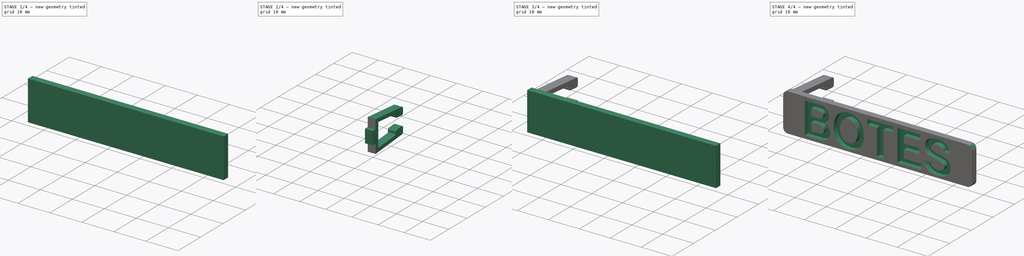
[diagram: build sequence overview — one tinted view per stage of 4, left to right]
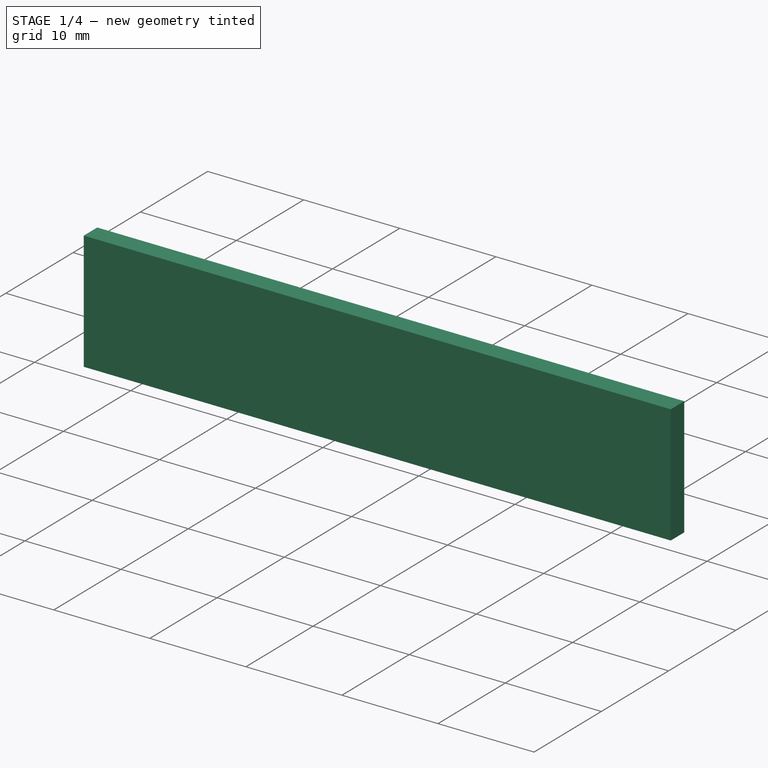
[diagram: stage 1 of 4 — iso view after this stage's code; geometry added in this stage tinted green]
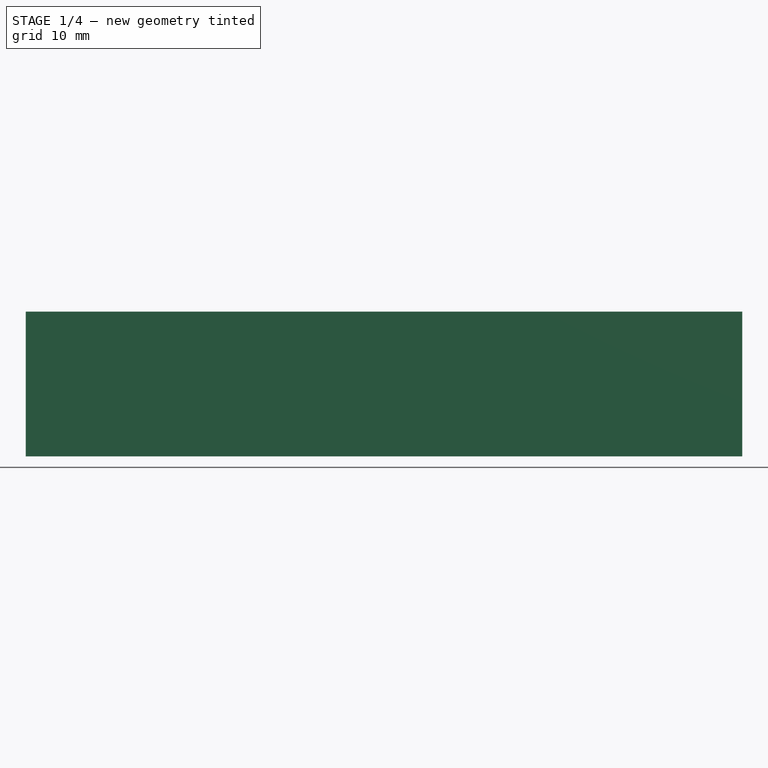
[diagram: stage 1 of 4 — front view after this stage's code; geometry added in this stage tinted green]
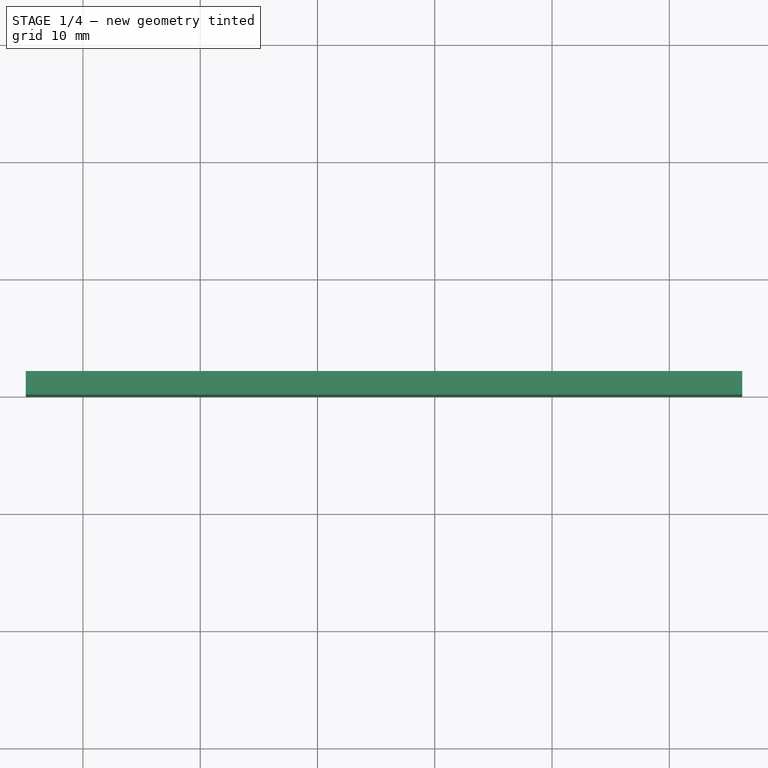
[diagram: stage 1 of 4 — top view after this stage's code; geometry added in this stage tinted green]
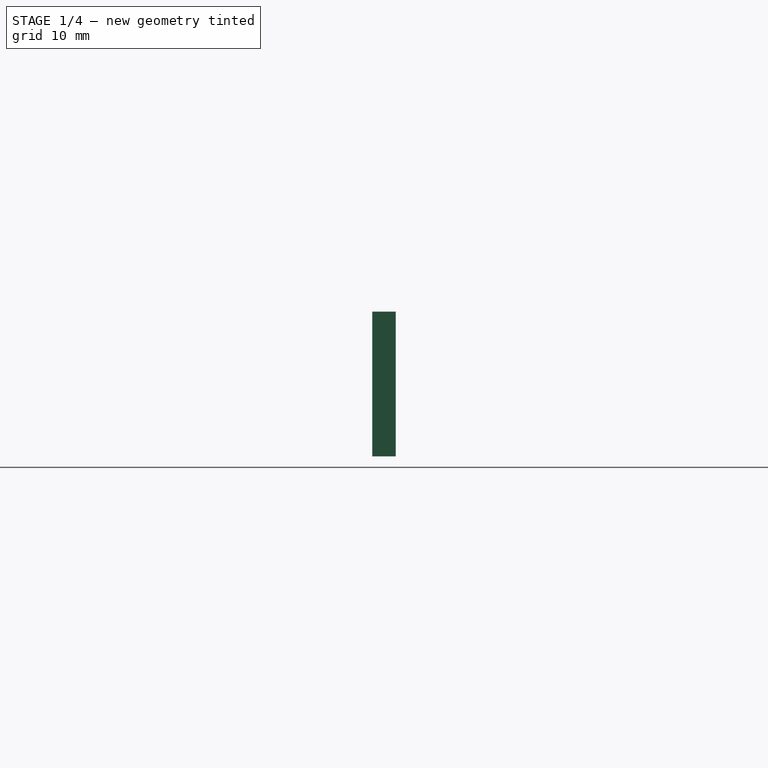
[diagram: stage 1 of 4 — right view after this stage's code; geometry added in this stage tinted green]
FCSTD DOCUMENT  (FreeCAD 0.19R)
Label: FridgeTags
License: All rights reserved
LicenseURL: http://en.wikipedia.org/wiki/All_rights_reserved
objects: Sketcher::SketchObject×3, PartDesign::Plane×3, PartDesign::Fillet×3, PartDesign::Pad×2, PartDesign::Body×2, App::Part×2, Part::Part2DObjectPython×1, Spreadsheet::Sheet×1, Part::Extrusion×1, PartDesign::Pocket×1, PartDesign::Mirrored×1, Part::Cut×1
note: 24 computed .brp shape members not serialized (recipe doc carries the construction recipe); baked Part::Feature solids carry a one-line shape summary decoded from their .brp

FEATURE [Sketcher::SketchObject] Sketch
  FullyConstrained = true
  MapMode = 5
  Support = -> [XY_Plane001]
  expr: Constraints[9] = <<Parameters>>.TextThickness
  expr: Constraints[8] = 0
  expr: Constraints[10] = <<Parameters>>.SideSize + <<Parameters>>.TextMargin - <<TextExtrusion>>.Shape.BoundBox.XMin
  expr: Constraints[11] = <<TextExtrusion>>.Shape.BoundBox.XMax + <<Parameters>>.TextMargin + <<Parameters>>.SideSize
  sketch-geometry (4):
    g0: LineSegment StartX=-4.88182 StartY=0 StartZ=0 EndX=56.2227 EndY=0 EndZ=0
    g1: LineSegment StartX=56.2227 StartY=0 StartZ=0 EndX=56.2227 EndY=2 EndZ=0
    g2: LineSegment StartX=56.2227 StartY=2 StartZ=0 EndX=-4.88182 EndY=2 EndZ=0
    g3: LineSegment StartX=-4.88182 StartY=2 StartZ=0 EndX=-4.88182 EndY=0 EndZ=0
  constraints (12):
    c: Coincident(g0,g1)
    c: Coincident(g1,g2)
    c: Coincident(g2,g3)
    c: Coincident(g3,g0)
    c: Horizontal(g0)
    c: Horizontal(g2)
    c: Vertical(g1)
    c: Vertical(g3)
    c: DistanceY(g0,g-1) = 0
    c: DistanceY(g-1,g2) = 2
    c: DistanceX(g0,g-1) = 4.88182
    c: DistanceX(g-1,g0) = 56.2227
FEATURE [Part::Part2DObjectPython] ShapeString  label="Text"  # Draft 2D object (typed FeaturePython)
  FontFile = <path>
  Placement = pos=(0,0,0) rot=(1,0,0;1.5708rad)
  Size = 5
  String = BOTES
  Tracking = 0
  expr: String = <<Parameters>>.Text
  expr: Size = <<Parameters>>.TextSize
FEATURE [Spreadsheet::Sheet] Spreadsheet  label="Parameters"
  cells = A1=Text; B1(Text)=BOTES; A2=TextSize; B2(TextSize)=5; A3=TextThickness; B3(TextThickness)=2; A4=BaseFrontMargin; B4(BaseFrontMargin)=1; A5=TextMargin; B5(TextMargin)=1; A6=SideSize; B6(SideSize)=6; A7=StandWidth; B7(StandWidth)=3; A8=StandHeadRad; B8(StandHeadRad)=2.5; A9=StandLength; B9(StandLength)=15; A10=StandSeparation; B10(StandSeparation)=9; A11=StandAngle; B11(StandAngle)=5; A12=StandMargin; B12(StandMargin)==(SideSize - StandWidth) / 2; A13=StandHole; B13(StandHole)=1.5; A14=OutRadius; B14(OutRadius)=1.5; A15=StandThickness; B15(StandThickness)=1.5; A16=HoleTolerance; B16(HoleTolerance)=0.24; A17=StandFinishRadius; B17(StandFinishRadius)=0.5; A18=TextBase; B18(TextBase)=0.5; A19=StandEdgeWidth; B19(StandEdgeWidth)=9.5; A20=StandInOffset; B20(StandInOffset)=1.5
FEATURE [Part::Extrusion] Extrusion  label="TextExtrusion"
  Base = -> ShapeString
  Dir = (7e-16,1.5,-4.9e-15)
  DirMode = 0
  FaceMakerClass = Part::FaceMakerBullseye
  LengthFwd = 0
  LengthRev = 0
  Placement = pos=(1,0,1) rot=(0,0,1;0rad)
  Solid = true
  Symmetric = false
  expr: .Dir.y = <<Parameters>>.TextThickness - <<Parameters>>.TextBase
  expr: .Placement.Base.y = 0
  expr: .Placement.Base.x = <<Parameters>>.TextMargin
  expr: .Placement.Base.z = <<Parameters>>.TextMargin
FEATURE [PartDesign::Pad] Pad
  Direction = (1,1,1)
  Length = 12.3455
  Length2 = 100
  Profile = -> Sketch
  Type = 0
  expr: Length = <<TextExtrusion>>.Shape.BoundBox.ZMax + <<Parameters>>.TextMargin
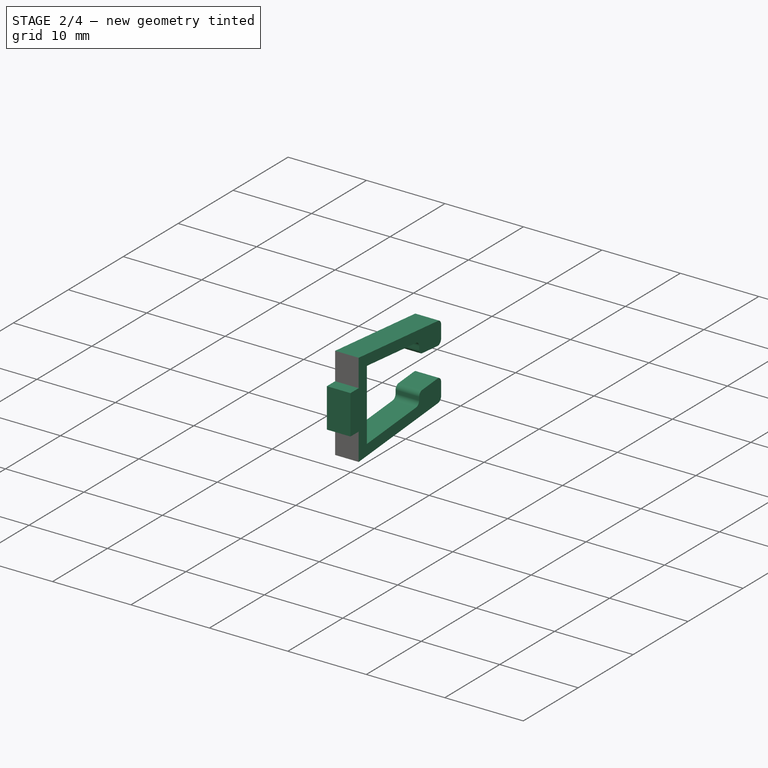
[diagram: stage 2 of 4 — iso view after this stage's code; geometry added in this stage tinted green]
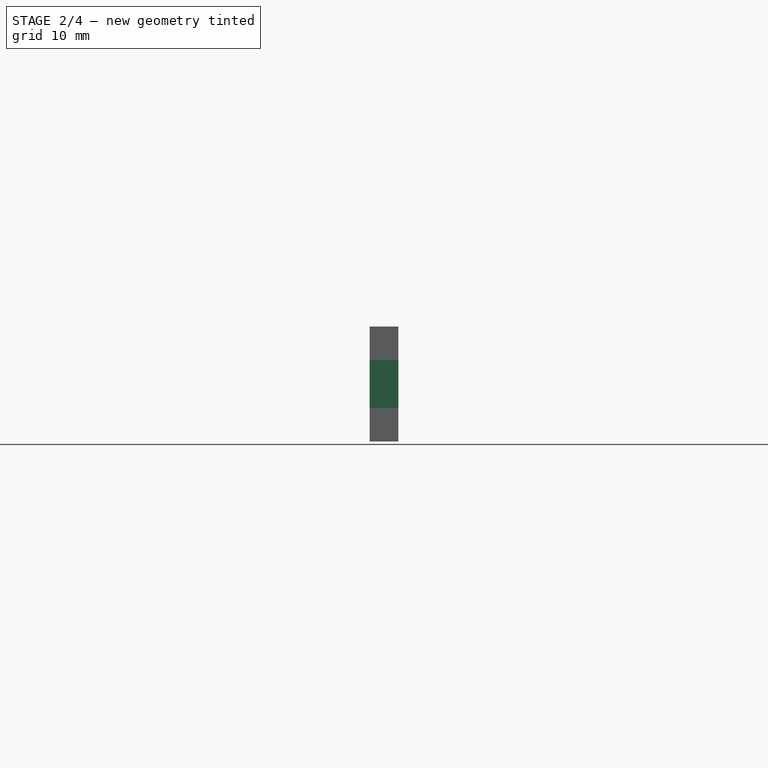
[diagram: stage 2 of 4 — front view after this stage's code; geometry added in this stage tinted green]
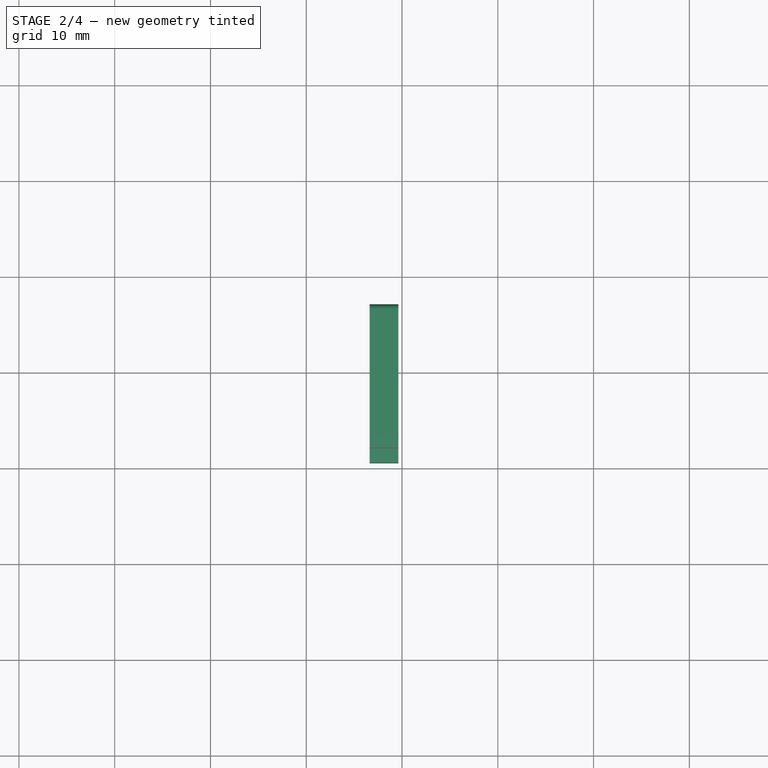
[diagram: stage 2 of 4 — top view after this stage's code; geometry added in this stage tinted green]
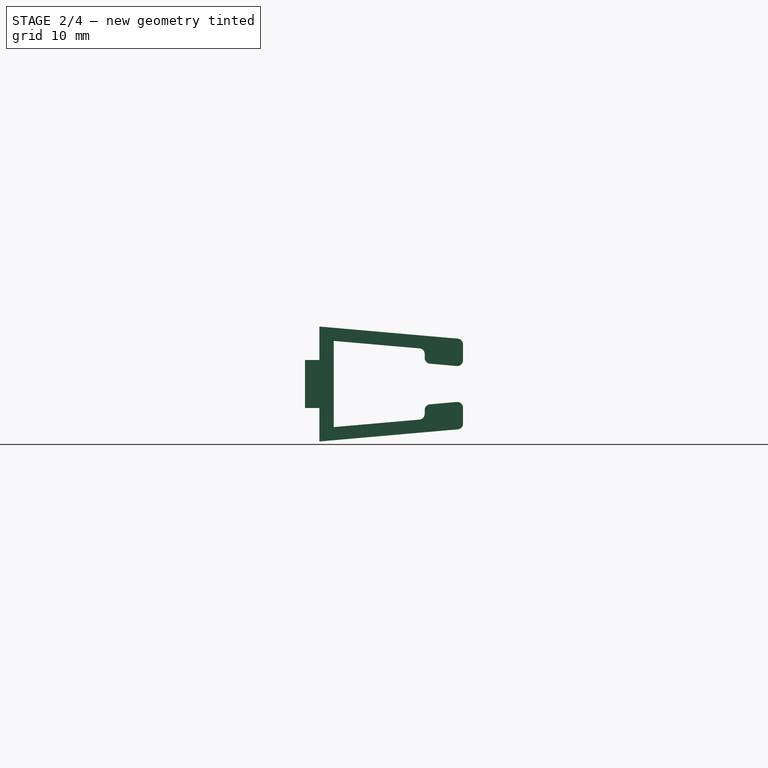
[diagram: stage 2 of 4 — right view after this stage's code; geometry added in this stage tinted green]
FEATURE [PartDesign::Body] Body
  Group = -> [Sketch,Pad,DatumPlane,DatumPlane001,Sketch001,Pocket,Mirrored,Fillet]
  Origin = -> Origin001
  Tip = -> Fillet
FEATURE [PartDesign::Plane] DatumPlane002
  AttachmentOffset = pos=(0,0,-3.38182) rot=(0,0,1;0rad)
  Length = 60
  MapMode = 5
  Placement = pos=(-3.38182,8e-16,-8e-16) rot=(0.57735,0.57735,0.57735;2.0944rad)
  ResizeMode = 0
  Support = -> [YZ_Plane003]
  Width = 60
  expr: .AttachmentOffset.Base.z = <<Pad>>.Shape.BoundBox.XMin + <<Parameters>>.StandMargin
FEATURE [Sketcher::SketchObject] Sketch002
  FullyConstrained = true
  MapMode = 5
  Placement = pos=(-3.38182,8e-16,-8e-16) rot=(0.57735,0.57735,0.57735;2.0944rad)
  Support = -> [DatumPlane002]
  expr: Constraints[19] = <<Parameters>>.StandHole
  expr: Constraints[23] = <<Parameters>>.StandThickness
  expr: Constraints[27] = <<Parameters>>.StandLength
  expr: Constraints[20] = <<Parameters>>.StandSeparation
  expr: Constraints[45] = <<Parameters>>.StandInOffset
  expr: Constraints[24] = <<Parameters>>.StandThickness
  expr: Constraints[30] = <<Parameters>>.StandAngle
  expr: Constraints[25] = 2 * <<Parameters>>.StandHeadRad
  expr: Constraints[28] = <<Pad>>.Shape.BoundBox.ZMax / 2 - <<Parameters>>.StandHeadRad
  expr: Constraints[21] = <<Parameters>>.StandThickness
  expr: Constraints[29] = <<Parameters>>.StandAngle
  expr: Constraints[26] = <<Parameters>>.StandThickness - <<Parameters>>.StandHeadRad + <<Parameters>>.StandSeparation / 2
  expr: Constraints[18] = <<Parameters>>.TextThickness
  expr: Constraints[36] = <<Parameters>>.StandEdgeWidth
  expr: Constraints[44] = <<Parameters>>.StandInOffset
  sketch-geometry (16):
    g0: LineSegment StartX=2 StartY=12.1727 StartZ=0 EndX=17 EndY=10.8604 EndZ=0
    g1: LineSegment StartX=17 StartY=10.8604 StartZ=0 EndX=17 EndY=7.99163 EndZ=0
    g2: LineSegment StartX=17 StartY=1.48506 StartZ=0 EndX=2 EndY=0.172727 EndZ=0
    g3: LineSegment StartX=2 StartY=0.172727 StartZ=0 EndX=2 EndY=3.67273 EndZ=0
    g4: LineSegment StartX=3.5 StartY=10.6727 StartZ=0 EndX=13 EndY=9.84158 EndZ=0
    g5: LineSegment StartX=13 StartY=2.50387 StartZ=0 EndX=3.5 EndY=1.67273 EndZ=0
    g6: LineSegment StartX=3.5 StartY=1.67273 StartZ=0 EndX=3.5 EndY=10.6727 EndZ=0
    g7: LineSegment StartX=0.5 StartY=8.67273 StartZ=0 EndX=2 EndY=8.67273 EndZ=0
    g8: LineSegment StartX=2 StartY=3.67273 StartZ=0 EndX=0.5 EndY=3.67273 EndZ=0
    g9: LineSegment StartX=0.5 StartY=3.67273 StartZ=0 EndX=0.5 EndY=8.67273 EndZ=0
    g10: LineSegment StartX=17 StartY=4.35382 StartZ=0 EndX=17 EndY=1.48506 EndZ=0
    g11: LineSegment StartX=2 StartY=8.67273 StartZ=0 EndX=2 EndY=12.1727 EndZ=0
    g12: LineSegment StartX=13 StartY=9.84158 StartZ=0 EndX=13 EndY=8.34158 EndZ=0
    g13: LineSegment StartX=13 StartY=8.34158 StartZ=0 EndX=17 EndY=7.99163 EndZ=0
    g14: LineSegment StartX=13 StartY=4.00387 StartZ=0 EndX=17 EndY=4.35382 EndZ=0
    g15: LineSegment StartX=13 StartY=4.00387 StartZ=0 EndX=13 EndY=2.50387 EndZ=0
  constraints (46):
    c: Coincident(g0,g1)
    c: Coincident(g10,g2)
    c: Coincident(g2,g3)
    c: Coincident(g11,g0)
    c: Vertical(g1)
    c: Vertical(g3)
    c: Coincident(g5,g6)
    c: Coincident(g6,g4)
    c: Vertical(g6)
    c: Coincident(g8,g9)
    c: Coincident(g9,g7)
    c: Horizontal(g7)
    c: Horizontal(g8)
    c: Vertical(g9)
    c: Tangent(g1,g10)
    c: PointOnObject(g11,g7)
    c: Tangent(g3,g11)
    c: Coincident(g8,g3)
    c: DistanceX(g-1,g2) = 2
    c: DistanceX(g8,g8) = 1.5
    c: DistanceY(g6,g6) = 9
    c: DistanceX(g3,g4) = 1.5
    c: PointOnObject(g7,g11)
    c: DistanceY(g4,g0) = 1.5
    c: DistanceY(g2,g5) = 1.5
    c: DistanceY(g9,g9) = 5
    c: DistanceY(g7,g0) = 3.5
    c: DistanceX(g0,g0) = 15
    c: DistanceY(g-1,g8) = 3.67273
    c: Angle(g0,g7) = 0.0872665
    c: Angle(g8,g2) = 0.0872665
    c: Parallel(g2,g5)
    c: Parallel(g4,g0)
    c: Vertical(g12)
    c: Parallel(g13,g4)
    c: Parallel(g14,g5)
    c: DistanceX(g4,g12) = 9.5
    c: Coincident(g4,g12)
    c: Coincident(g5,g15)
    c: Coincident(g10,g14)
    c: Coincident(g1,g13)
    c: Coincident(g12,g13)
    c: Coincident(g15,g14)
    c: Tangent(g12,g15)
    c: DistanceY(g12,g4) = 1.5
    c: DistanceY(g5,g14) = 1.5
FEATURE [PartDesign::Pad] Pad001
  Direction = (1,1,1)
  Length = 3
  Length2 = 100
  Placement = pos=(-3.38182,8e-16,-8e-16) rot=(0.57735,0.57735,0.57735;2.0944rad)
  Profile = -> Sketch002
  Type = 0
  expr: Length = <<Parameters>>.StandWidth
FEATURE [PartDesign::Fillet] Fillet001
  Base = -> Pad001 [Edge2,Edge26,Edge29,Edge5,Edge32,Edge1,Edge44,Edge35]
  BaseFeature = -> Pad001
  Placement = pos=(-3.38182,8e-16,-8e-16) rot=(0.57735,0.57735,0.57735;2.0944rad)
  Radius = 0.6
  SupportTransform = false
  expr: Radius = 0.4 * <<Parameters>>.StandThickness
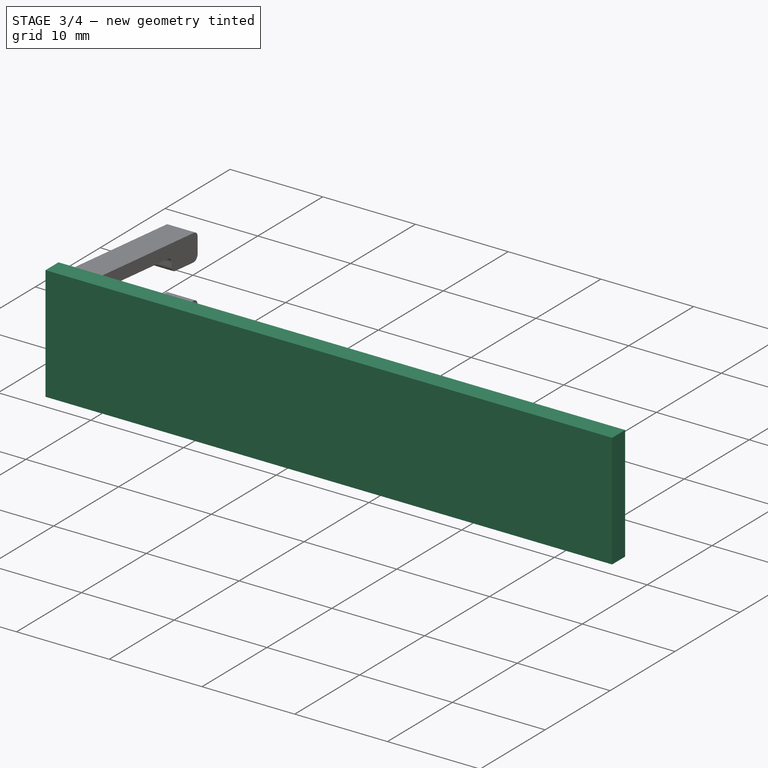
[diagram: stage 3 of 4 — iso view after this stage's code; geometry added in this stage tinted green]
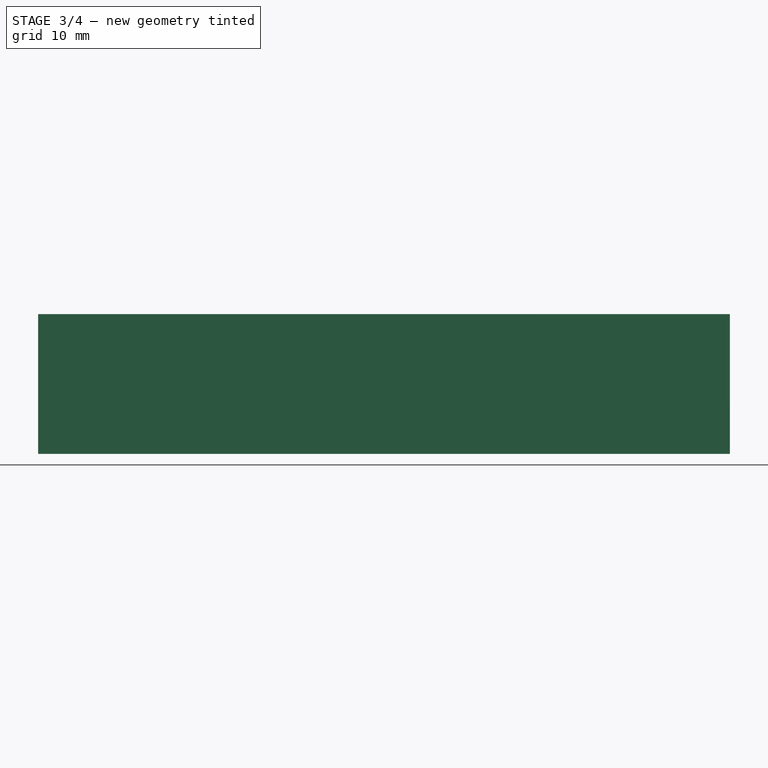
[diagram: stage 3 of 4 — front view after this stage's code; geometry added in this stage tinted green]
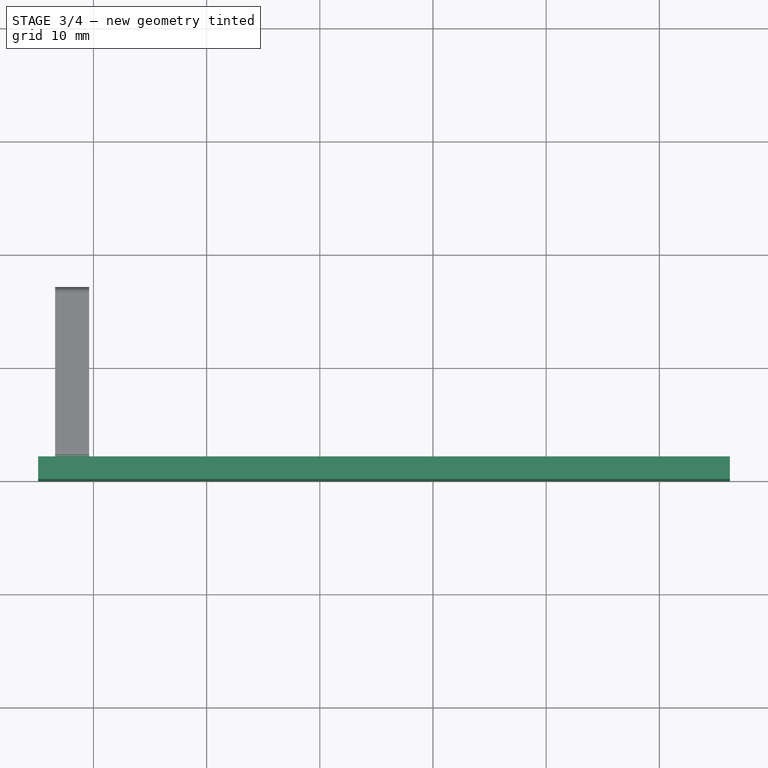
[diagram: stage 3 of 4 — top view after this stage's code; geometry added in this stage tinted green]
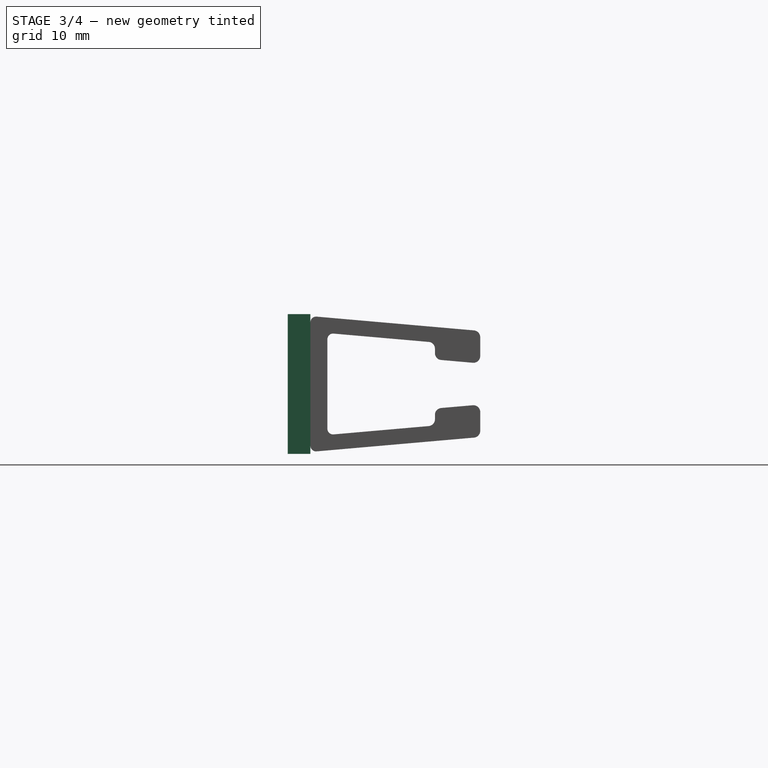
[diagram: stage 3 of 4 — right view after this stage's code; geometry added in this stage tinted green]
FEATURE [PartDesign::Plane] DatumPlane
  AttachmentOffset = pos=(0,0,25.6705) rot=(0,0,1;0rad)
  Length = 60
  MapMode = 5
  Placement = pos=(25.6705,-5.7e-15,5.7e-15) rot=(0.57735,0.57735,0.57735;2.0944rad)
  ResizeMode = 0
  Support = -> [YZ_Plane001]
  Width = 60
  expr: .AttachmentOffset.Base.z = 0.5 * (<<TextExtrusion>>.Shape.BoundBox.XMax + <<TextExtrusion>>.Shape.BoundBox.XMin)
FEATURE [PartDesign::Plane] DatumPlane001
  AttachmentOffset = pos=(0,0,2) rot=(0,0,1;0rad)
  Length = 93.9681
  MapMode = 5
  Placement = pos=(0,2,4e-16) rot=(0,0.707107,0.707107;3.14159rad)
  ResizeMode = 0
  Support = -> [XZ_Plane001]
  Width = 62.7454
  expr: .AttachmentOffset.Base.z = <<Parameters>>.TextThickness
FEATURE [Sketcher::SketchObject] Sketch001
  FullyConstrained = true
  MapMode = 5
  Placement = pos=(0,2,4e-16) rot=(0,0.707107,0.707107;3.14159rad)
  Support = -> [DatumPlane001]
  expr: Constraints[8] = -(<<TextExtrusion>>.Shape.BoundBox.XMin - <<Parameters>>.TextMargin - <<Parameters>>.StandMargin + <<Parameters>>.HoleTolerance)
  expr: Constraints[9] = <<Parameters>>.StandWidth + 2 * <<Parameters>>.HoleTolerance
  expr: Constraints[10] = 2 * <<Parameters>>.StandHeadRad + 2 * <<Parameters>>.HoleTolerance
  expr: Constraints[11] = <<Pad>>.Shape.BoundBox.ZMax / 2 - <<Parameters>>.StandHeadRad - <<Parameters>>.HoleTolerance
  sketch-geometry (4):
    g0: LineSegment StartX=0.141818 StartY=3.43273 StartZ=0 EndX=3.62182 EndY=3.43273 EndZ=0
    g1: LineSegment StartX=3.62182 StartY=3.43273 StartZ=0 EndX=3.62182 EndY=8.91273 EndZ=0
    g2: LineSegment StartX=3.62182 StartY=8.91273 StartZ=0 EndX=0.141818 EndY=8.91273 EndZ=0
    g3: LineSegment StartX=0.141818 StartY=8.91273 StartZ=0 EndX=0.141818 EndY=3.43273 EndZ=0
  constraints (12):
    c: Coincident(g0,g1)
    c: Coincident(g1,g2)
    c: Coincident(g2,g3)
    c: Coincident(g3,g0)
    c: Horizontal(g0)
    c: Horizontal(g2)
    c: Vertical(g1)
    c: Vertical(g3)
    c: DistanceX(g0) = 0.141818
    c: DistanceX(g2,g2) = 3.48
    c: DistanceY(g1,g1) = 5.48
    c: DistanceY(g-1,g0) = 3.43273
FEATURE [PartDesign::Pocket] Pocket
  BaseFeature = -> Pad
  Length = 1.5
  Length2 = 100
  Profile = -> Sketch001
  Type = 0
  expr: Length = <<Parameters>>.StandHole
FEATURE [PartDesign::Mirrored] Mirrored
  BaseFeature = -> Pocket
  MirrorPlane = -> DatumPlane
  Originals = -> [Pocket]
FEATURE [App::Part] Part  label="Label"
  Group = -> [Body,ShapeString,Extrusion,Cut]
  Origin = -> Origin
FEATURE [PartDesign::Fillet] Fillet002
  Base = -> Fillet001 [Edge58,Edge57,Edge59,Edge68]
  BaseFeature = -> Fillet001
  Placement = pos=(-3.38182,8e-16,-8e-16) rot=(0.57735,0.57735,0.57735;2.0944rad)
  Radius = 0.5
  SupportTransform = false
  expr: Radius = <<Parameters>>.StandFinishRadius
FEATURE [PartDesign::Body] Body001
  Group = -> [DatumPlane002,Sketch002,Pad001,Fillet001,Fillet002]
  Origin = -> Origin003
  Tip = -> Fillet002
FEATURE [App::Part] Part001  label="Stand"
  Group = -> [Body001,Spreadsheet]
  Origin = -> Origin002
note: 1 file-system path scrubbed to <path> (originals preserved in the JSON sidecar)
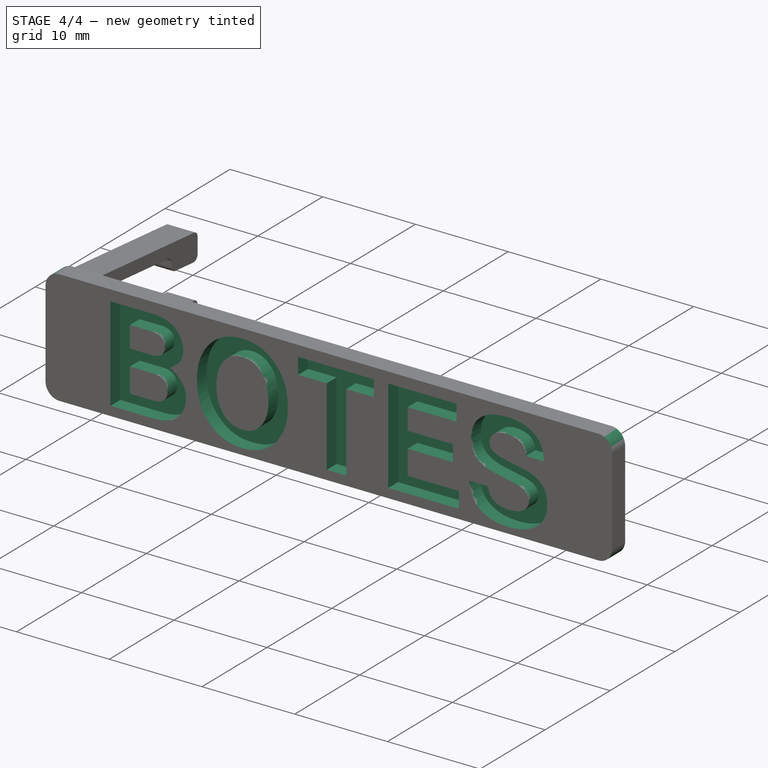
[diagram: stage 4 of 4 — iso view after this stage's code; geometry added in this stage tinted green]
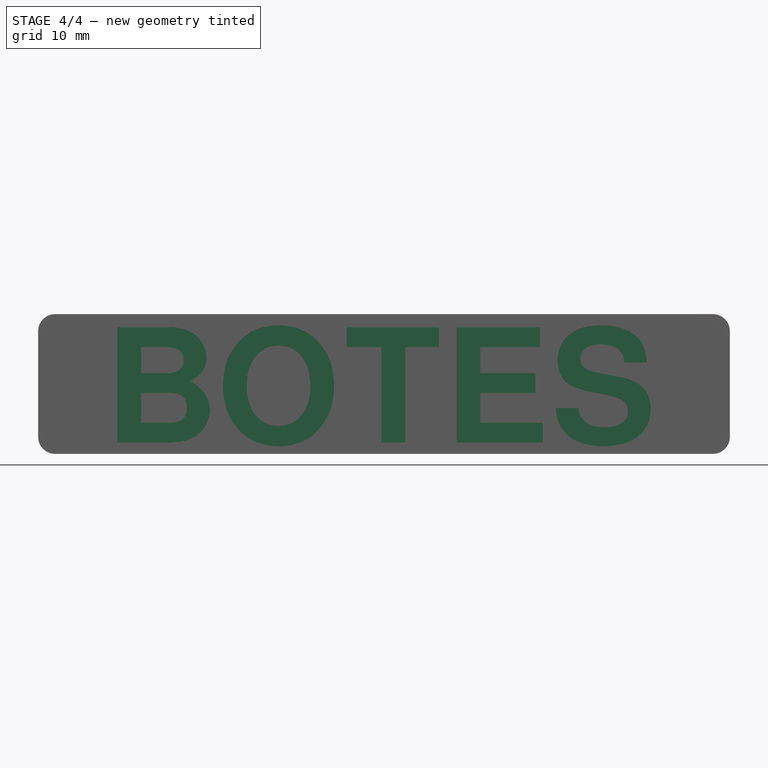
[diagram: stage 4 of 4 — front view after this stage's code; geometry added in this stage tinted green]
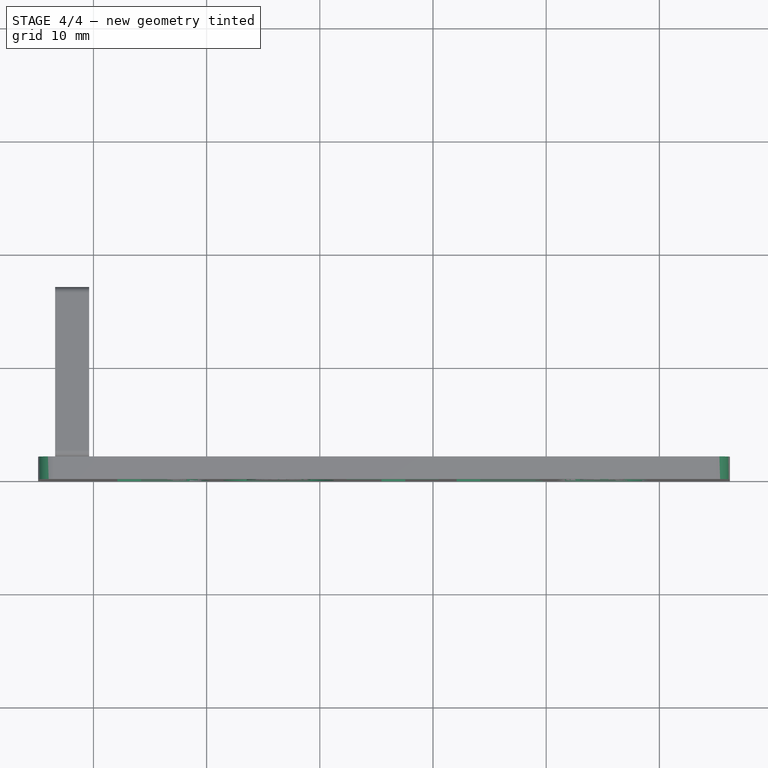
[diagram: stage 4 of 4 — top view after this stage's code; geometry added in this stage tinted green]
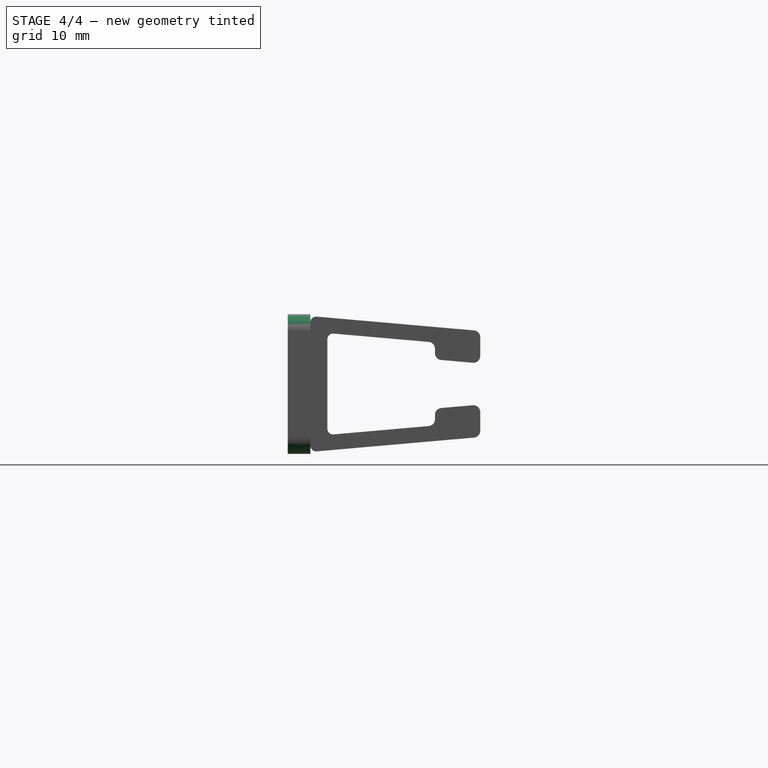
[diagram: stage 4 of 4 — right view after this stage's code; geometry added in this stage tinted green]
FEATURE [PartDesign::Fillet] Fillet
  Base = -> Mirrored [Edge10,Edge9,Edge7,Edge6]
  BaseFeature = -> Mirrored
  Radius = 1.5
  SupportTransform = false
  expr: Radius = <<Parameters>>.OutRadius
FEATURE [Part::Cut] Cut
  Base = -> Body
  Tool = -> Extrusion
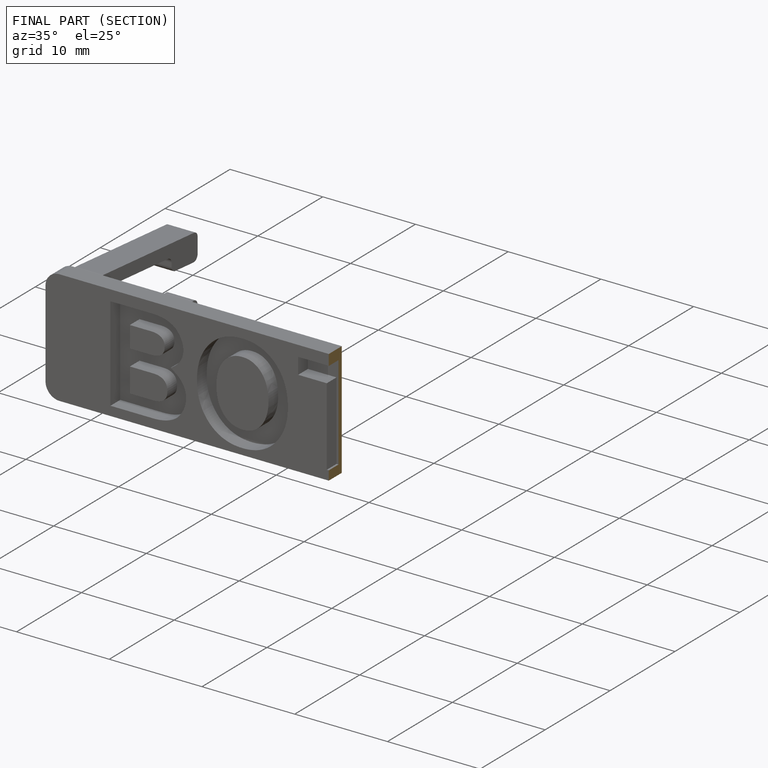
[diagram: finished part — half-section view (interior)]
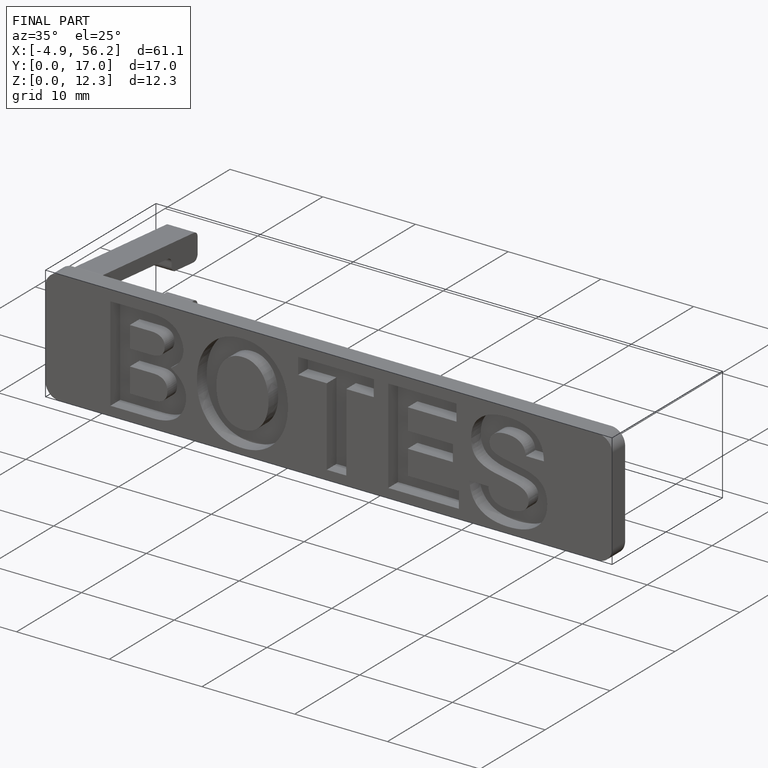
[diagram: finished part — iso view with bounding-box wireframe]
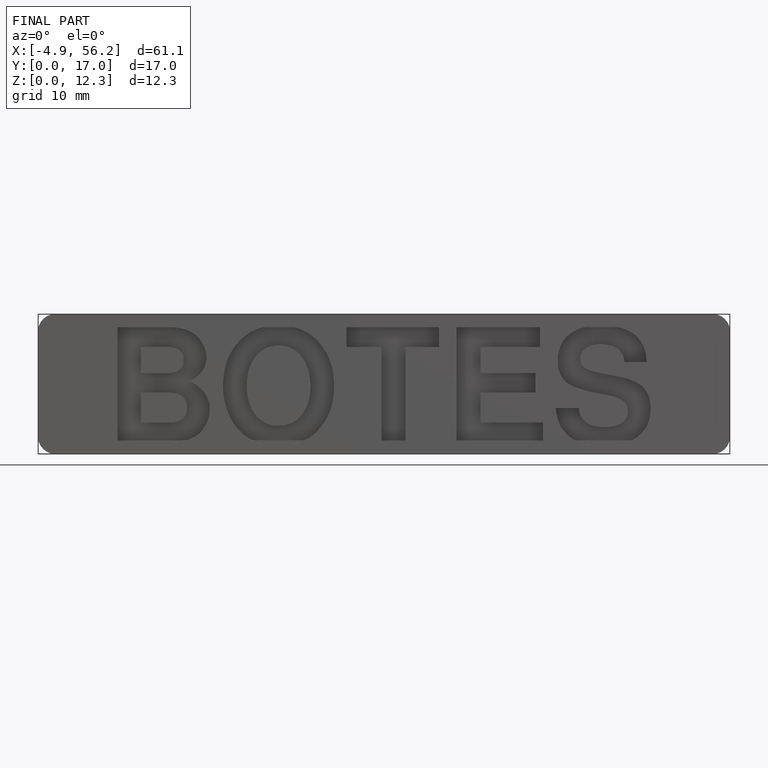
[diagram: finished part — front view with bounding-box wireframe]
